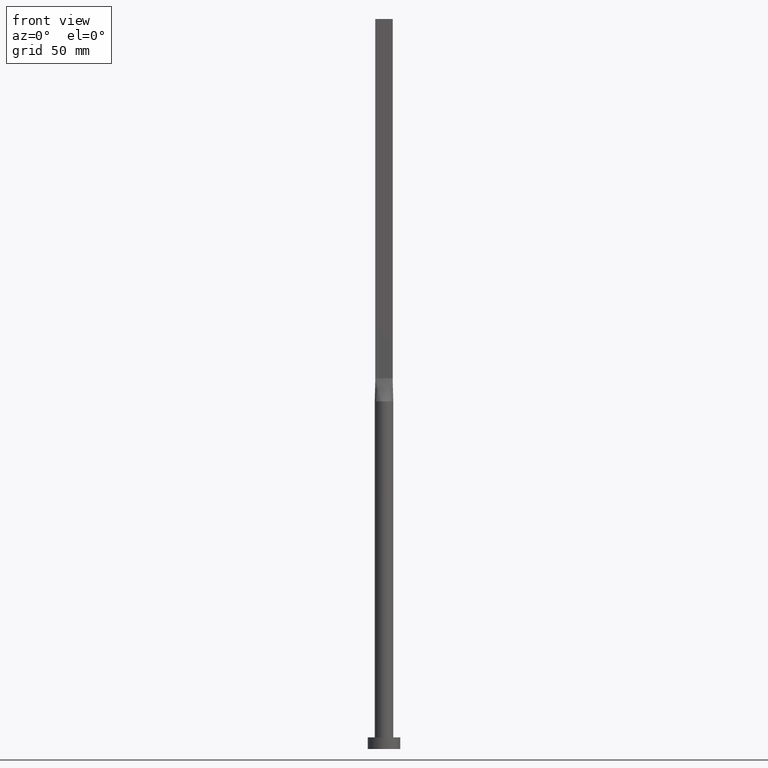
[diagram: clean part render]
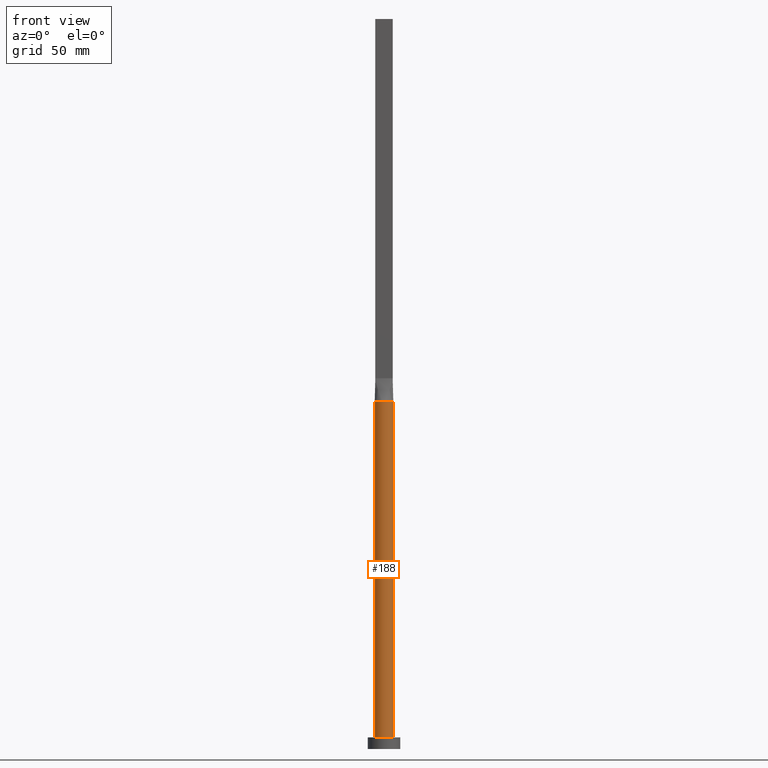
[diagram: same view with one face highlighted and labeled with its STEP entity id]
A machine part, front view. The second image highlights one B-rep face of the part: STEP entity #188.
In plain terms, the highlighted cylindrical surface (edge-blend (fillet) strip) has radius 4 mm, axis along (-0, -0, -1).
Its self-contained STEP definition (entity closure, byte-faithful):
#6 = DIRECTION ( 'NONE',  ( 1.000000000000000000, -1.421085471520200372E-14, 0.000000000000000000 ) ) ;
#13 = CARTESIAN_POINT ( 'NONE',  ( 3.999622889843378992, 9.846808768795811108E-16, 150.0000000000000000 ) ) ;
#31 = LINE ( 'NONE', #69, #229 ) ;
#52 = DIRECTION ( 'NONE',  ( 0.000000000000000000, 0.000000000000000000, 1.000000000000000000 ) ) ;
#53 = DIRECTION ( 'NONE',  ( 1.000000000000000000, 0.000000000000000000, 0.000000000000000000 ) ) ;
#56 = VERTEX_POINT ( 'NONE', #488 ) ;
#69 = CARTESIAN_POINT ( 'NONE',  ( 4.000000000000000000, 4.898587196589412829E-16, 150.0000000000000000 ) ) ;
#72 = CARTESIAN_POINT ( 'NONE',  ( -4.000000000000000000, 0.000000000000000000, 150.0000000000000000 ) ) ;
#89 = CIRCLE ( 'NONE', #393, 4.000000000000000000 ) ;
#104 = DIRECTION ( 'NONE',  ( 0.000000000000000000, 0.000000000000000000, 1.000000000000000000 ) ) ;
#112 = FACE_OUTER_BOUND ( 'NONE', #267, .T. ) ;
#120 = AXIS2_PLACEMENT_3D ( 'NONE', #347, #122, #479 ) ;
#122 = DIRECTION ( 'NONE',  ( 0.000000000000000000, 0.000000000000000000, 1.000000000000000000 ) ) ;
#131 = VERTEX_POINT ( 'NONE', #13 ) ;
#135 = ORIENTED_EDGE ( 'NONE', *, *, #507, .F. ) ;
#180 = AXIS2_PLACEMENT_3D ( 'NONE', #411, #52, #6 ) ;
#188 = ADVANCED_FACE ( 'NONE', ( #112 ), #480, .T. ) ;
#209 = EDGE_CURVE ( 'NONE', #213, #56, #378, .T. ) ;
#213 = VERTEX_POINT ( 'NONE', #526 ) ;
#219 = VERTEX_POINT ( 'NONE', #565 ) ;
#229 = VECTOR ( 'NONE', #523, 1000.000000000000000 ) ;
#239 = VERTEX_POINT ( 'NONE', #470 ) ;
#260 = DIRECTION ( 'NONE',  ( -0.000000000000000000, -0.000000000000000000, -1.000000000000000000 ) ) ;
#265 = EDGE_CURVE ( 'NONE', #131, #239, #31, .T. ) ;
#267 = EDGE_LOOP ( 'NONE', ( #450, #135, #360, #332, #574, #472 ) ) ;
#282 = AXIS2_PLACEMENT_3D ( 'NONE', #299, #260, #554 ) ;
#299 = CARTESIAN_POINT ( 'NONE',  ( 0.000000000000000000, 0.000000000000000000, 150.0000000000000000 ) ) ;
#309 = EDGE_CURVE ( 'NONE', #508, #219, #371, .T. ) ;
#330 = EDGE_CURVE ( 'NONE', #56, #239, #363, .T. ) ;
#332 = ORIENTED_EDGE ( 'NONE', *, *, #442, .F. ) ;
#347 = CARTESIAN_POINT ( 'NONE',  ( 0.000000000000000000, 0.000000000000000000, 150.0000000000000000 ) ) ;
#352 = VECTOR ( 'NONE', #471, 1000.000000000000000 ) ;
#360 = ORIENTED_EDGE ( 'NONE', *, *, #309, .F. ) ;
#363 = CIRCLE ( 'NONE', #435, 4.000000000000000000 ) ;
#371 = CIRCLE ( 'NONE', #120, 4.000000000000000000 ) ;
#375 = CARTESIAN_POINT ( 'NONE',  ( -3.922691619086878134, -0.7845384300002018474, 150.0000000000000000 ) ) ;
#378 = LINE ( 'NONE', #72, #352 ) ;
#393 = AXIS2_PLACEMENT_3D ( 'NONE', #457, #104, #53 ) ;
#411 = CARTESIAN_POINT ( 'NONE',  ( 0.000000000000000000, 0.000000000000000000, 150.0000000000000000 ) ) ;
#435 = AXIS2_PLACEMENT_3D ( 'NONE', #486, #530, #569 ) ;
#442 = EDGE_CURVE ( 'NONE', #213, #508, #89, .T. ) ;
#450 = ORIENTED_EDGE ( 'NONE', *, *, #265, .F. ) ;
#457 = CARTESIAN_POINT ( 'NONE',  ( 0.000000000000000000, 0.000000000000000000, 150.0000000000000000 ) ) ;
#470 = CARTESIAN_POINT ( 'NONE',  ( 4.000000000000000000, 4.898587196589412829E-16, 5.000000000000000000 ) ) ;
#471 = DIRECTION ( 'NONE',  ( -0.000000000000000000, -0.000000000000000000, -1.000000000000000000 ) ) ;
#472 = ORIENTED_EDGE ( 'NONE', *, *, #330, .T. ) ;
#479 = DIRECTION ( 'NONE',  ( 1.000000000000000000, 0.000000000000000000, 0.000000000000000000 ) ) ;
#480 = CYLINDRICAL_SURFACE ( 'NONE', #282, 4.000000000000000000 ) ;
#486 = CARTESIAN_POINT ( 'NONE',  ( 0.000000000000000000, 0.000000000000000000, 5.000000000000000000 ) ) ;
#488 = CARTESIAN_POINT ( 'NONE',  ( -4.000000000000000000, 0.000000000000000000, 5.000000000000000000 ) ) ;
#507 = EDGE_CURVE ( 'NONE', #219, #131, #513, .T. ) ;
#508 = VERTEX_POINT ( 'NONE', #375 ) ;
#513 = CIRCLE ( 'NONE', #180, 4.000000000000000000 ) ;
#523 = DIRECTION ( 'NONE',  ( -0.000000000000000000, -0.000000000000000000, -1.000000000000000000 ) ) ;
#526 = CARTESIAN_POINT ( 'NONE',  ( -3.999622889843378992, -9.724176664205578004E-16, 150.0000000000000000 ) ) ;
#530 = DIRECTION ( 'NONE',  ( 0.000000000000000000, 0.000000000000000000, 1.000000000000000000 ) ) ;
#554 = DIRECTION ( 'NONE',  ( -1.000000000000000000, 0.000000000000000000, 0.000000000000000000 ) ) ;
#565 = CARTESIAN_POINT ( 'NONE',  ( 3.922705552857197908, -0.7845410930675295047, 150.0000000000000000 ) ) ;
#569 = DIRECTION ( 'NONE',  ( 1.000000000000000000, 0.000000000000000000, 0.000000000000000000 ) ) ;
#574 = ORIENTED_EDGE ( 'NONE', *, *, #209, .T. ) ;